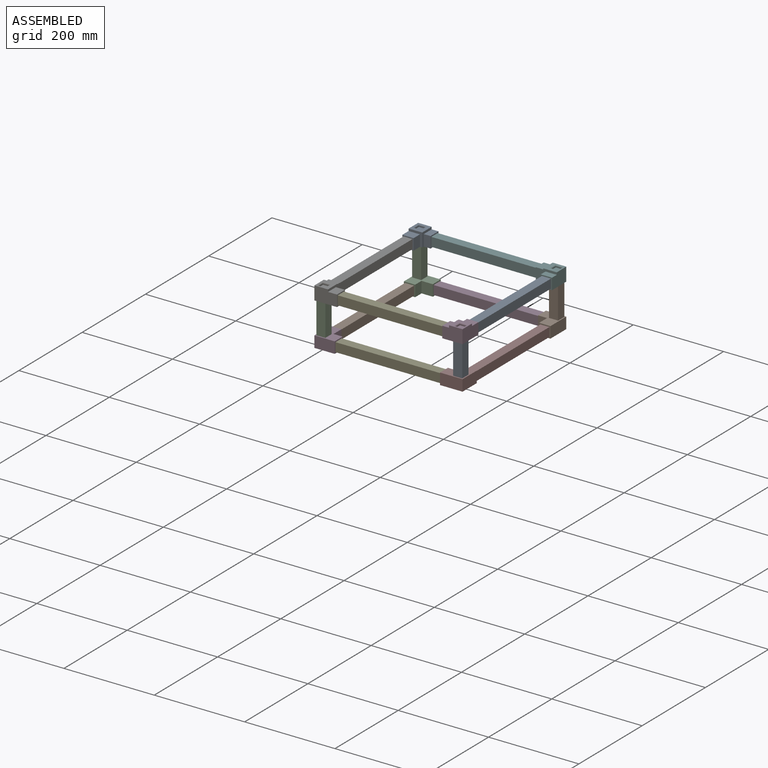
[diagram: assembled view]
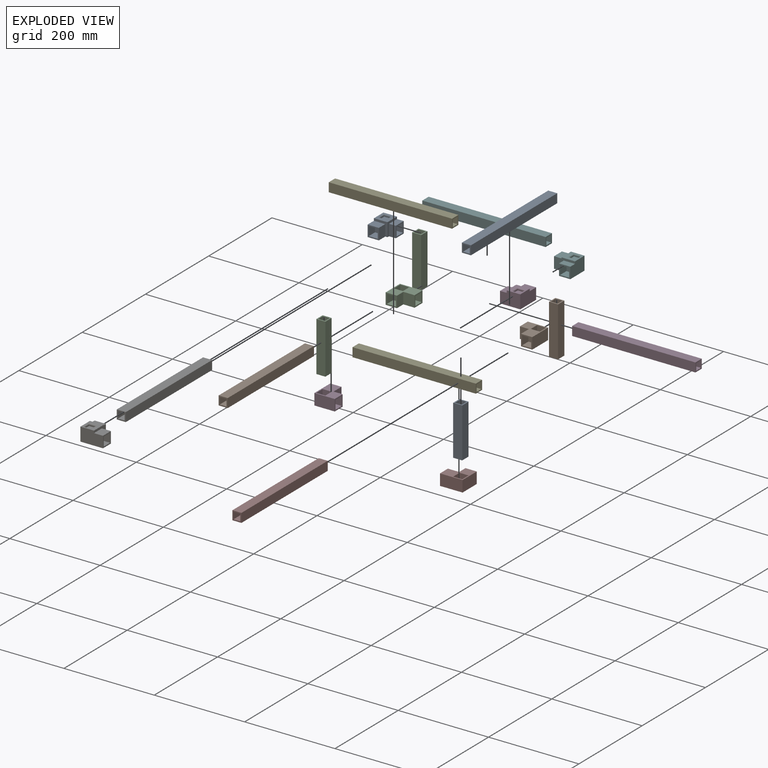
[diagram: exploded view]
GUIDED TOUR — MATED ASSEMBLY (Onshape document 24934e8f8b2bb171f6c803bb, AutoMate assembly 24934e8f8b2bb171f6c803bb_d98a2037839b162d8d30d801_a1f87b2b2d617943c96d1307_default)

This assembly has 20 components, labeled P0..P19 below (a component is one placed occurrence of a part; the same part can appear more than once), held together by 19 mates. A mate is a constraint between two components; its type names the relative motion it leaves free:
  FASTENED — locks the two components together rigidly (no relative motion).
Axis/direction vectors are unit vectors and 'through' points are millimeter coordinates, both in the assembly's world frame.

MATES
  1. FASTENED "Fastened 16": P12 <-> P11, direction (-1.000, 0.000, 0.000) through (65.37, 32.43, -6.54) mm
  2. FASTENED "Fastened 15": P15 <-> P16, direction (0.000, 0.000, 1.000) through (355.87, 32.43, -14.04) mm
  3. FASTENED "Fastened 17": P17 <-> P2, direction (0.000, 1.000, 0.000) through (52.87, 322.93, -6.54) mm
  4. FASTENED "Fastened 6": P5 <-> P0, direction (0.000, -1.000, 0.000) through (355.87, 322.93, 88.46) mm
  5. FASTENED "Fastened 7": P8 <-> P6, direction (0.000, -1.000, 0.000) through (52.87, 317.93, 88.46) mm
  6. FASTENED "Fastened 4": P19 <-> P4, direction (-1.000, 0.000, 0.000) through (343.37, 32.43, 88.46) mm
  7. FASTENED "Fastened 3": P4 <-> P14, direction (-1.000, 0.000, 0.000) through (70.37, 32.43, 88.46) mm
  8. FASTENED "Fastened 18": P7 <-> P9, direction (0.000, 1.000, 0.000) through (355.87, 317.93, -6.54) mm
  9. FASTENED "Fastened 19": P3 <-> P9, direction (1.000, 0.000, 0.000) through (343.37, 335.43, -6.54) mm
  10. FASTENED "Fastened 13": P2 <-> P10, direction (0.000, 0.000, 1.000) through (52.87, 335.43, -14.04) mm
  11. FASTENED "Fastened 12": P11 <-> P18, direction (0.000, 0.000, 1.000) through (52.87, 32.43, -14.04) mm
  12. FASTENED "Fastened 9": P1 <-> P5, direction (0.000, 0.000, 1.000) through (355.87, 335.43, 95.96) mm
  13. FASTENED "Fastened 5": P0 <-> P19, direction (0.000, -1.000, 0.000) through (355.87, 49.93, 88.46) mm
  14. FASTENED "Fastened 14": P9 <-> P1, direction (0.000, 0.000, 1.000) through (355.87, 335.43, -14.04) mm
  15. FASTENED "Fastened 1": P6 <-> P14, direction (0.000, -1.000, 0.000) through (52.87, 44.93, 88.46) mm
  16. FASTENED "Fastened 8": P13 <-> P8, direction (-1.000, 0.000, 0.000) through (65.37, 335.43, 88.46) mm
  17. FASTENED "Fastened 11": P10 <-> P8, direction (0.000, 0.000, 1.000) through (52.87, 335.43, 95.96) mm
  18. FASTENED "Fastened 2": P14 <-> P18, direction (0.000, 0.000, -1.000) through (52.87, 32.43, 95.96) mm
  19. FASTENED "Fastened 10": P16 <-> P19, direction (0.000, 0.000, 1.000) through (355.87, 32.43, 95.96) mm

ASSEMBLY ORDER
  1. P10 — the base component [order heuristic]
  2. P2 — core [order heuristic]
  3. P5 [order verified]
  4. P18 — core [order heuristic]
  5. P11 — core [order heuristic]
  6. P12 — core [order heuristic]
  7. P16 — core [order heuristic]
  8. P15 — core [order heuristic]
  9. P1 — core [order heuristic]
  10. P8 [order verified]
  11. P3 — core [order heuristic]
  12. P9 — core [order heuristic]
  13. P4 [order verified]
  14. P17 — core [order heuristic]
  15. P0 [order verified]
  16. P6 [order verified]
  17. P7 — core [order heuristic]
  18. P13 [order verified]
  19. P19 [order verified]
  20. P14 [order verified]
(P14 verified with a relaxed clearance tolerance: the source model stores slight part interference there.)
Order-tag legend:
  [order verified] — this step's position reverses a verified removal order: the component was checked to insert without passing through the ones already placed.
  [order heuristic] — the first 12 components form the assembly's core: parts whose collision-free extraction could not be verified, listed in mate-graph order.

Of the 20 components, 4 carry the full construction recipe — the FeatureScript program that regenerates the part's solid from scratch; the rest are supplied as boundary geometry only.
Because this assembly has more than 12 components, the tour below covers the 12 most significant ones individually (every recipe-attached component first, then the largest by part volume), in assembly order; the remaining 8 are summarized together in a grouped section at the end.
Each toured component is shown spotlighted twice — in the assembled view, then in the exploded view, where a leader line traces a displaced component back to its assembled socket (saturated green if recipe-attached, orange if geometry-only; every other component desaturated gray) — followed by its recipe or geometry summary and the mates that hold it.
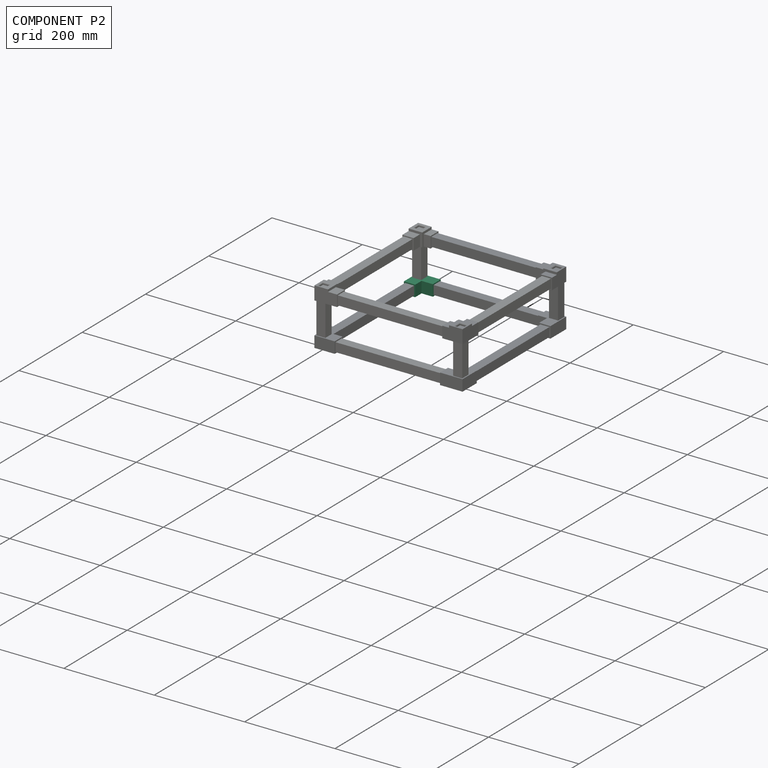
[diagram: component P2 — assembled]
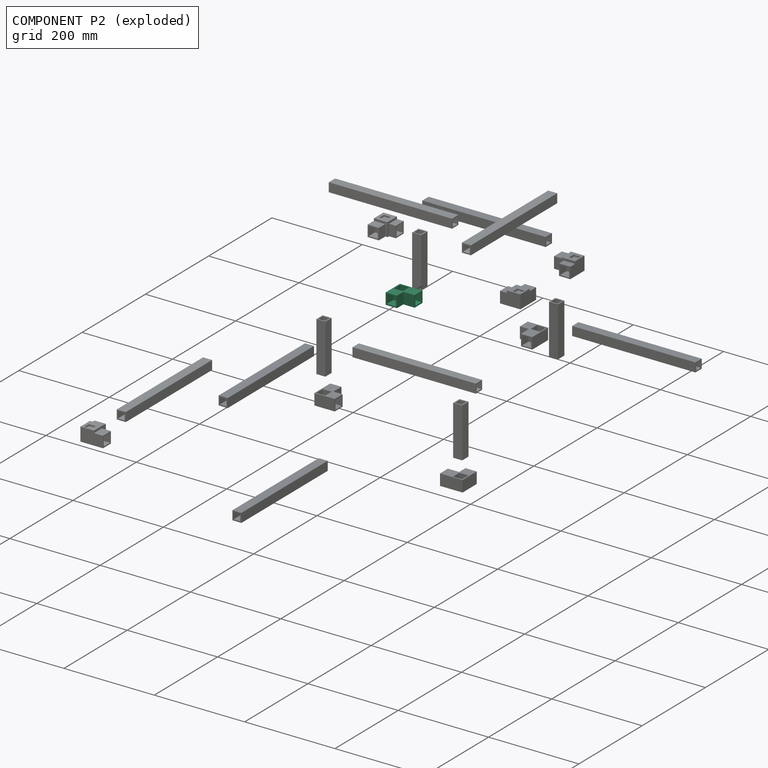
[diagram: component P2 — exploded]
COMPONENT P2 — recipe-attached (CADFS 00231972, mesh-verified: the recipe's output STEP matches this component's geometry to below the mesh-comparison resolution (tessellation chordal tolerance ~0.108 mm)).
Held by: FASTENED mate "Fastened 17" to P17; FASTENED mate "Fastened 13" to P10.
Construction recipe (FeatureScript — the CAD program that rebuilds this solid; sketch coordinates are in the units given by the * unit suffixes, e.g. mm):

FeatureScript 1511;
import(path : "onshape/std/geometry.fs", version : "1511.0");
import(path : "onshape/std/common.fs", version : "1511.0");
const mm = millimeter;
const VERTEX = EntityType.VERTEX;
const EDGE = EntityType.EDGE;
const FACE = EntityType.FACE;
const BODY = EntityType.BODY;
function v(x, y){return vector(x, y);}
function OD(order){return orderDisambiguation(order);}
function OSD(set){return originalSetDisambiguation(set);}
function TD(topology){return topologyDisambiguation(topology);}
function TDD(query){return trueDependencyDisambiguation(query);}
function sQuery(a, b, c) {return sketchEntityQuery(a, b, c);}

annotation { "Feature Type Name" : "Feature", "Feature Type Description" : "" }
export const myFeature = defineFeature(function(context is Context, id is Id, definition is map)
    precondition{}
    {
        {
            var Q0;
            Q0=qCreatedBy(makeId("Top.planeOp"),FACE);
            var sketch = newSketch(context, id + "F0", { "sketchPlane" : qUnion([Q0])});
            skLineSegment(sketch, "E0.top", {"start": v(0, 30) * mm, "end": v(-25, 30) * mm});
            skLineSegment(sketch, "E0.left", {"start": v(0, 5) * mm, "end": v(0, 30) * mm});
            skLineSegment(sketch, "E0.right", {"start": v(-25, 5) * mm, "end": v(-25, 30) * mm});
            skLineSegment(sketch, "E1.top", {"start": v(0, 10) * mm, "end": v(-25, 10) * mm});
            skLineSegment(sketch, "E1.left", {"start": v(0, 5) * mm, "end": v(0, 10) * mm});
            skLineSegment(sketch, "E1.right", {"start": v(-25, 5) * mm, "end": v(-25, 10) * mm});
            skLineSegment(sketch, "E2.bottom", {"start": v(0, 30) * mm, "end": v(5, 30) * mm});
            skLineSegment(sketch, "E2.left", {"start": v(0, 30) * mm, "end": v(0, 5) * mm});
            skLineSegment(sketch, "E2.right", {"start": v(5, 30) * mm, "end": v(5, 5) * mm});
            skLineSegment(sketch, "E3.bottom", {"start": v(5, 30) * mm, "end": v(25, 30) * mm});
            skLineSegment(sketch, "E3.top", {"start": v(5, 5) * mm, "end": v(25, 5) * mm});
            skLineSegment(sketch, "E3.right", {"start": v(25, 30) * mm, "end": v(25, 5) * mm});
            skLineSegment(sketch, "E4", {"start": v(5, 5) * mm, "end": v(-25, 5) * mm});
            skSolve(sketch);
        }
        {
            var Q0;
            Q0=qSketchRegion(id+"F0",true);
            extrude(context, id + "F1", {"entities" : qUnion([Q0]), "depth" : 25 * mm});
        }
        {
            var Q0;
            Q0=makeQuery(id+"F1.opExtrude","SWEPT_FACE",FACE,{"disambiguationData":[OSD([sQuery(id+"F0.wireOp",EDGE,"E0.top"),sQuery(id+"F0.wireOp",EDGE,"E2.bottom"),sQuery(id+"F0.wireOp",EDGE,"E3.bottom")])]});
            var sketch = newSketch(context, id + "F2", { "sketchPlane" : qUnion([Q0])});
            skLineSegment(sketch, "E5.bottom", {"start": v(25, 25) * mm, "end": v(0, 25) * mm});
            skLineSegment(sketch, "E5.top", {"start": v(25, 0) * mm, "end": v(0, 0) * mm});
            skLineSegment(sketch, "E5.left", {"start": v(25, 25) * mm, "end": v(25, 0) * mm});
            skLineSegment(sketch, "E5.right", {"start": v(0, 25) * mm, "end": v(0, 0) * mm});
            skLineSegment(sketch, "E6.bottom", {"start": v(2.5, 2.5) * mm, "end": v(22.5, 2.5) * mm});
            skLineSegment(sketch, "E6.top", {"start": v(2.5, 22.5) * mm, "end": v(22.5, 22.5) * mm});
            skLineSegment(sketch, "E6.left", {"start": v(2.5, 2.5) * mm, "end": v(2.5, 22.5) * mm});
            skLineSegment(sketch, "E6.right", {"start": v(22.5, 2.5) * mm, "end": v(22.5, 22.5) * mm});
            skPoint(sketch, "E6.middle", {"position": v(12.5, 12.5) * mm});
            skPoint(sketch, "E6.middle.positionSnap0", {"position": v(25, 12.5) * mm});
            skPoint(sketch, "E6.middle.positionSnap1", {"position": v(12.5, 25) * mm});
            skPoint(sketch, "E6.centerSnap0", {"position": v(25, 12.5) * mm});
            skPoint(sketch, "E6.centerSnap1", {"position": v(12.5, 25) * mm});
            skSolve(sketch);
        }
        {
            var Q0;
            Q0=makeQuery(id+"F2.imprint","IMPRINT",FACE,{"disambiguationData":[TD([[makeQuery(id+"F2.imprint","IMPRINT",EDGE,{"derivedFrom":sQuery(id+"F2.wireOp",EDGE,"E6.bottom")}),1.0]])]});
            extrude(context, id + "F3", {"entities" : qUnion([Q0]), "operationType" : NewBodyOperationType.REMOVE, "oppositeDirection" : true, "depth" : 20 * mm});
        }
        {
            var Q0;
            Q0=makeQuery(id+"F1.opExtrude","SWEPT_FACE",FACE,{"disambiguationData":[OSD([sQuery(id+"F0.wireOp",EDGE,"E3.right")])]});
            var sketch = newSketch(context, id + "F4", { "sketchPlane" : qUnion([Q0])});
            skLineSegment(sketch, "E7.bottom", {"start": v(5, 0) * mm, "end": v(30, 0) * mm});
            skLineSegment(sketch, "E7.top", {"start": v(5, 25) * mm, "end": v(30, 25) * mm});
            skLineSegment(sketch, "E7.left", {"start": v(5, 0) * mm, "end": v(5, 25) * mm});
            skLineSegment(sketch, "E7.right", {"start": v(30, 0) * mm, "end": v(30, 25) * mm});
            skLineSegment(sketch, "E8.bottom", {"start": v(27.5, 2.5) * mm, "end": v(7.5, 2.5) * mm});
            skLineSegment(sketch, "E8.top", {"start": v(27.5, 22.5) * mm, "end": v(7.5, 22.5) * mm});
            skLineSegment(sketch, "E8.left", {"start": v(27.5, 2.5) * mm, "end": v(27.5, 22.5) * mm});
            skLineSegment(sketch, "E8.right", {"start": v(7.5, 2.5) * mm, "end": v(7.5, 22.5) * mm});
            skPoint(sketch, "E8.middle", {"position": v(17.5, 12.5) * mm});
            skPoint(sketch, "E8.middle.positionSnap0", {"position": v(17.5, 25) * mm});
            skPoint(sketch, "E8.middle.positionSnap1", {"position": v(5, 12.5) * mm});
            skPoint(sketch, "E8.centerSnap0", {"position": v(17.5, 25) * mm});
            skPoint(sketch, "E8.centerSnap1", {"position": v(5, 12.5) * mm});
            skSolve(sketch);
        }
        {
            var Q0;
            Q0=makeQuery(id+"F4.imprint","IMPRINT",FACE,{"disambiguationData":[TD([[makeQuery(id+"F4.imprint","IMPRINT",EDGE,{"derivedFrom":sQuery(id+"F4.wireOp",EDGE,"E8.bottom")}),-1.0]])]});
            extrude(context, id + "F5", {"entities" : qUnion([Q0]), "operationType" : NewBodyOperationType.REMOVE, "oppositeDirection" : true, "depth" : 20 * mm});
        }
        {
            var Q0;
            Q0=makeQuery(id+"F1.opExtrude","CAP_FACE",FACE,{"disambiguationData":[OSD([sQuery(id+"F0.wireOp",EDGE,"E0.top"),sQuery(id+"F0.wireOp",EDGE,"E0.right"),sQuery(id+"F0.wireOp",EDGE,"E1.bottom"),sQuery(id+"F0.wireOp",EDGE,"E1.right"),sQuery(id+"F0.wireOp",EDGE,"E2.bottom"),sQuery(id+"F0.wireOp",EDGE,"E2.top"),sQuery(id+"F0.wireOp",EDGE,"E2.right"),sQuery(id+"F0.wireOp",EDGE,"E3.bottom"),sQuery(id+"F0.wireOp",EDGE,"E3.top"),sQuery(id+"F0.wireOp",EDGE,"E3.right")])],"isStart":false});
            var sketch = newSketch(context, id + "F6", { "sketchPlane" : qUnion([Q0])});
            skLineSegment(sketch, "E9.bottom", {"start": v(-25, 30) * mm, "end": v(0, 30) * mm});
            skLineSegment(sketch, "E9.top", {"start": v(-25, 5) * mm, "end": v(0, 5) * mm});
            skLineSegment(sketch, "E9.left", {"start": v(-25, 30) * mm, "end": v(-25, 5) * mm});
            skLineSegment(sketch, "E9.right", {"start": v(0, 30) * mm, "end": v(0, 5) * mm});
            skLineSegment(sketch, "E10.bottom", {"start": v(-2.5, 7.5) * mm, "end": v(-22.5, 7.5) * mm});
            skLineSegment(sketch, "E10.top", {"start": v(-2.5, 27.5) * mm, "end": v(-22.5, 27.5) * mm});
            skLineSegment(sketch, "E10.left", {"start": v(-2.5, 7.5) * mm, "end": v(-2.5, 27.5) * mm});
            skLineSegment(sketch, "E10.right", {"start": v(-22.5, 7.5) * mm, "end": v(-22.5, 27.5) * mm});
            skPoint(sketch, "E10.middle", {"position": v(-12.5, 17.5) * mm});
            skPoint(sketch, "E10.middle.positionSnap0", {"position": v(-25, 17.5) * mm});
            skPoint(sketch, "E10.middle.positionSnap1", {"position": v(-12.5, 30) * mm});
            skPoint(sketch, "E10.centerSnap0", {"position": v(-25, 17.5) * mm});
            skPoint(sketch, "E10.centerSnap1", {"position": v(-12.5, 30) * mm});
            skSolve(sketch);
        }
        {
            var Q0;
            Q0=qSketchRegion(id+"F6",true);
            extrude(context, id + "F7", {"entities" : qUnion([Q0]), "operationType" : NewBodyOperationType.ADD, "depth" : 20 * mm});
        }
    });
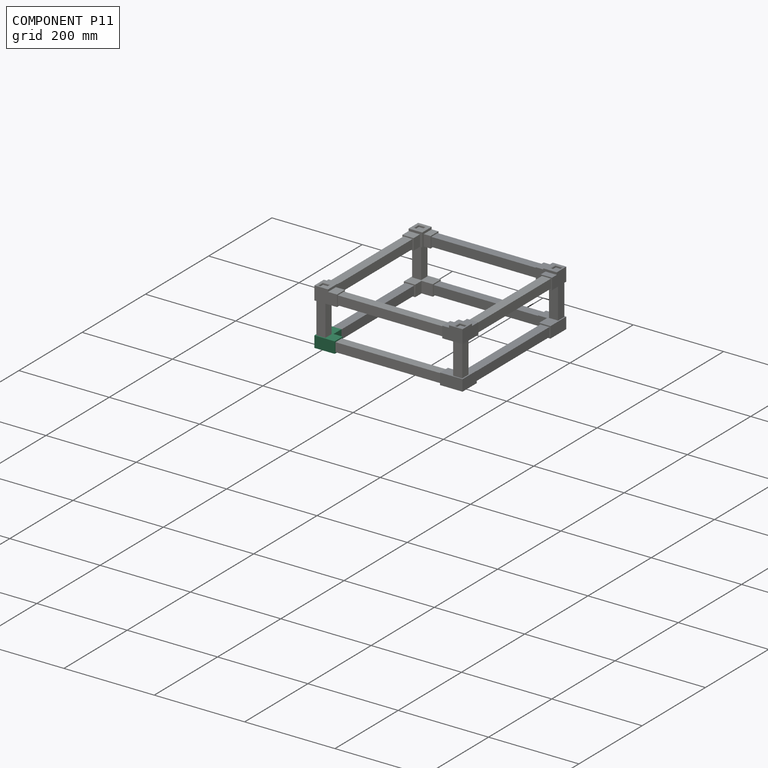
[diagram: component P11 — assembled]
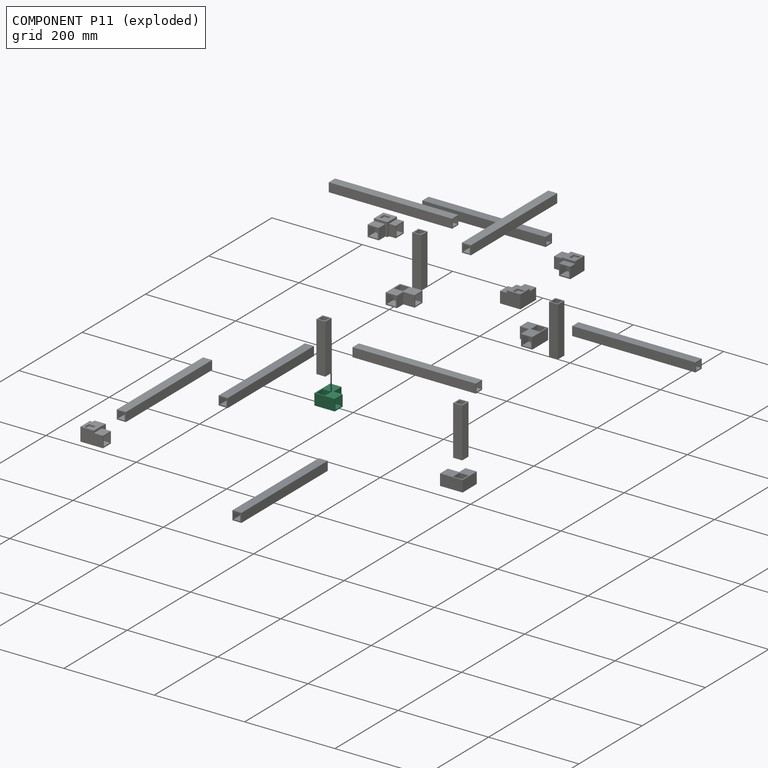
[diagram: component P11 — exploded]
COMPONENT P11 — same part as P2 (CADFS 00231972); its construction recipe is shown at P2.
Held by: FASTENED mate "Fastened 16" to P12; FASTENED mate "Fastened 12" to P18.
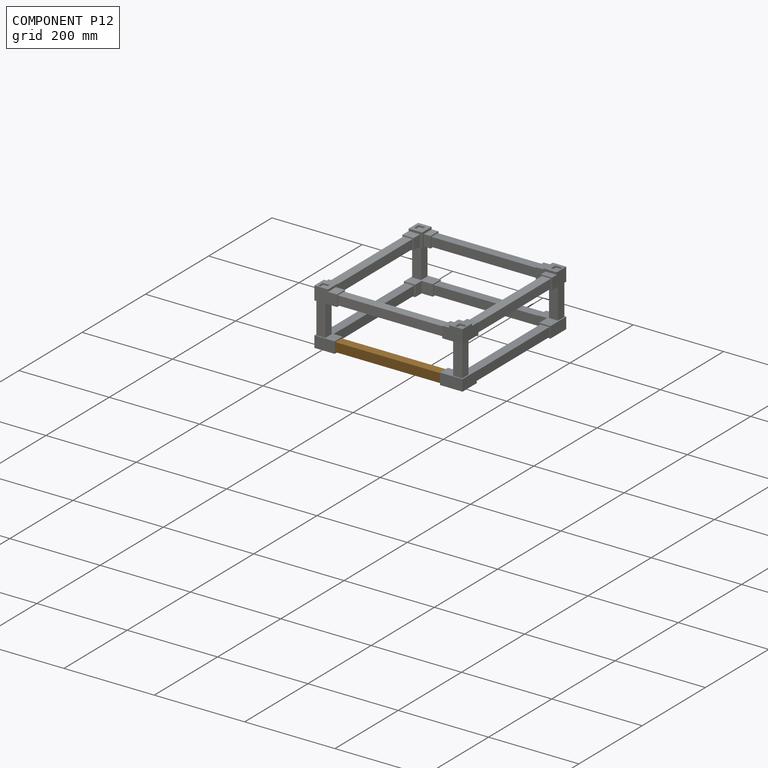
[diagram: component P12 — assembled]
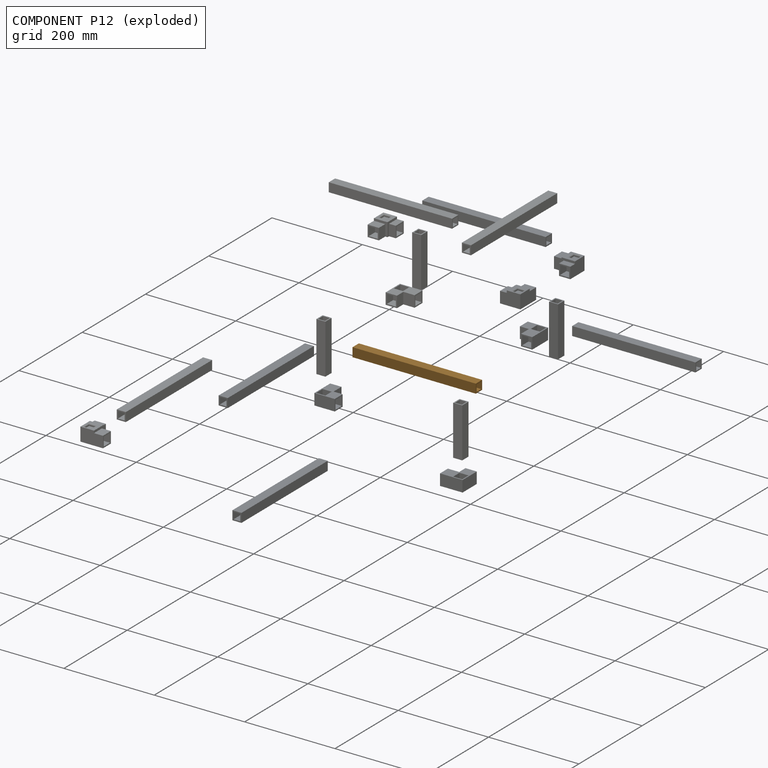
[diagram: component P12 — exploded]
COMPONENT P12 — geometry summary (no construction recipe available for this part):
  bounding box: 273.0 x 20.0 x 20.0 mm
  B-rep topology: 1 solid, 10 faces, 48 edges
  volume: 47775 mm^3 (44% of its bounding box)
  symmetry: 2-fold rotationally symmetric about the x axis; 4-fold rotationally symmetric about the y axis; 2-fold rotationally symmetric about the z axis; mirror-symmetric across its x mid-plane, y mid-plane, z mid-plane
Held by: FASTENED mate "Fastened 16" to P11.
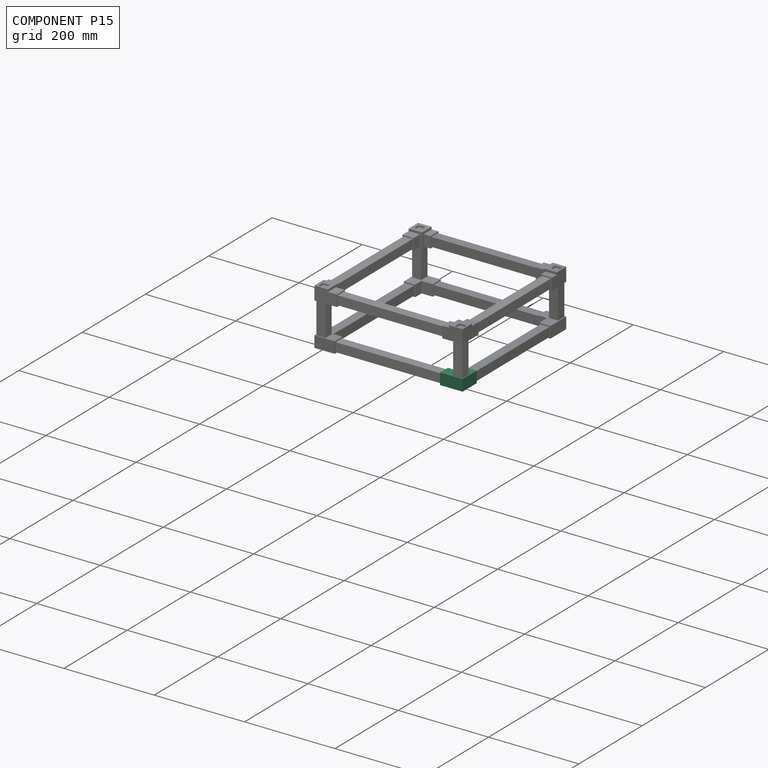
[diagram: component P15 — assembled]
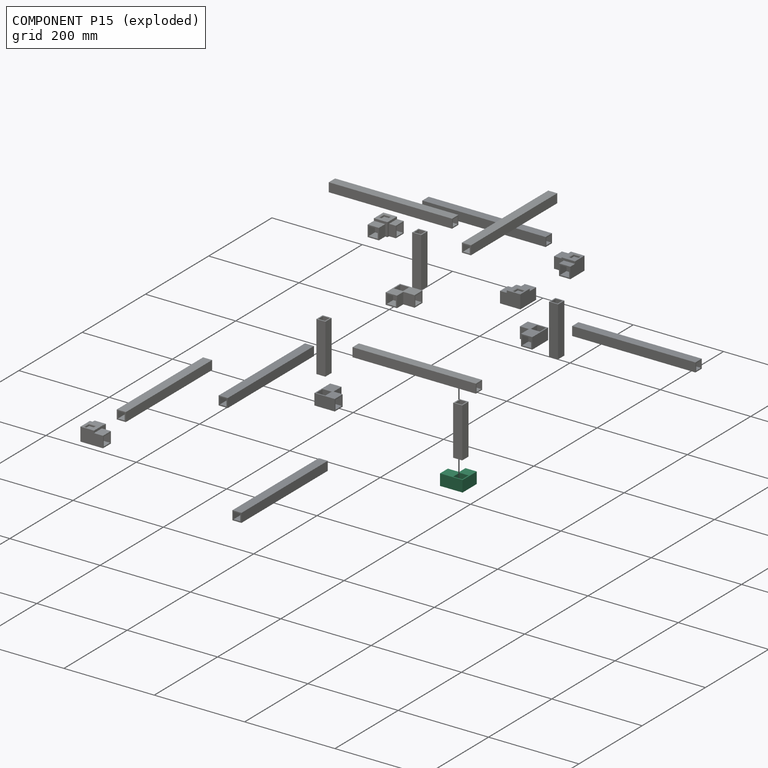
[diagram: component P15 — exploded]
COMPONENT P15 — same part as P2 (CADFS 00231972); its construction recipe is shown at P2.
Held by: FASTENED mate "Fastened 15" to P16.
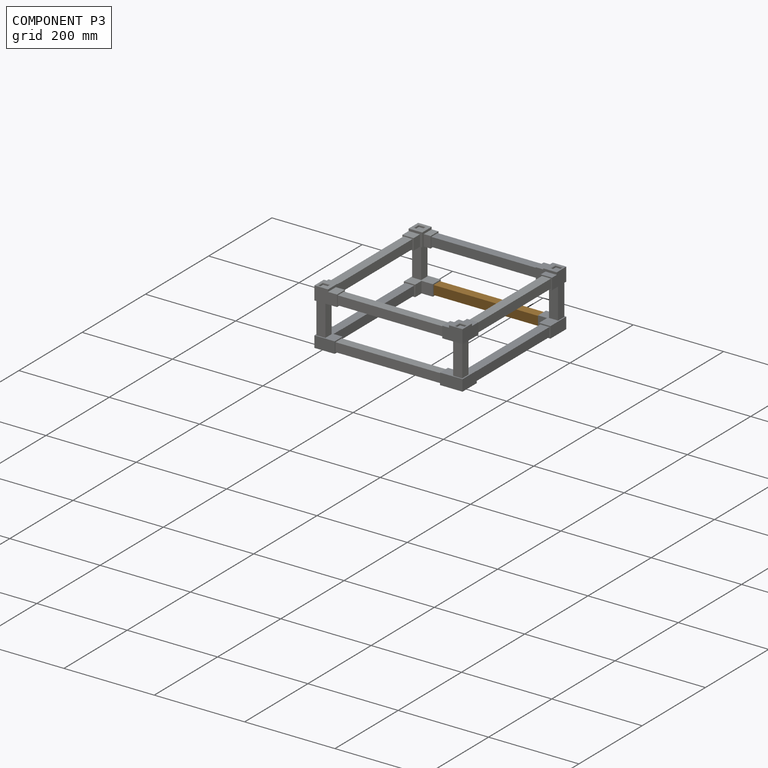
[diagram: component P3 — assembled]
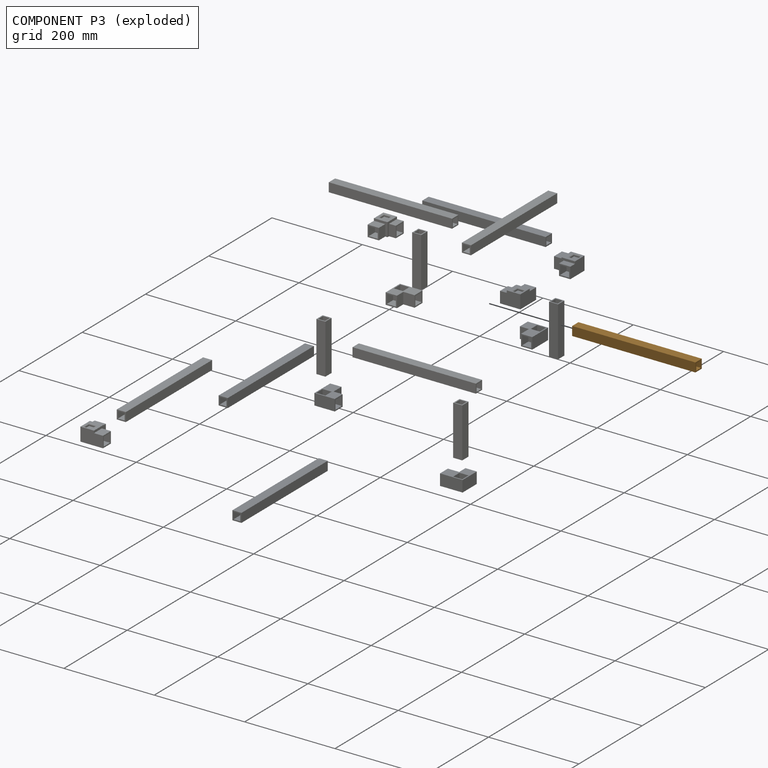
[diagram: component P3 — exploded]
COMPONENT P3 — geometry summary (no construction recipe available for this part):
  bounding box: 273.0 x 20.0 x 20.0 mm
  B-rep topology: 1 solid, 10 faces, 48 edges
  volume: 47775 mm^3 (44% of its bounding box)
  symmetry: 2-fold rotationally symmetric about the x axis; 4-fold rotationally symmetric about the y axis; 2-fold rotationally symmetric about the z axis; mirror-symmetric across its x mid-plane, y mid-plane, z mid-plane
Held by: FASTENED mate "Fastened 19" to P9.
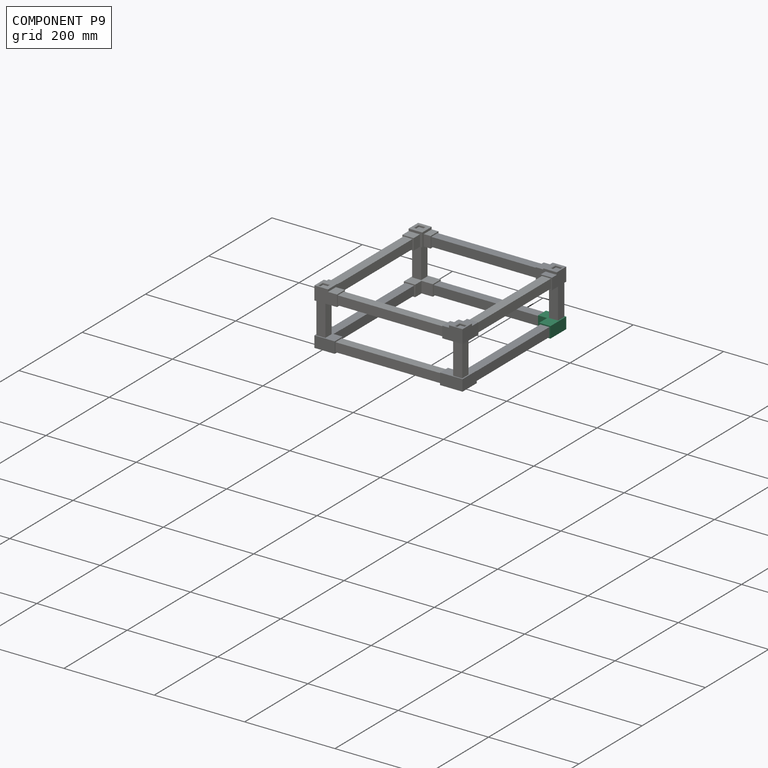
[diagram: component P9 — assembled]
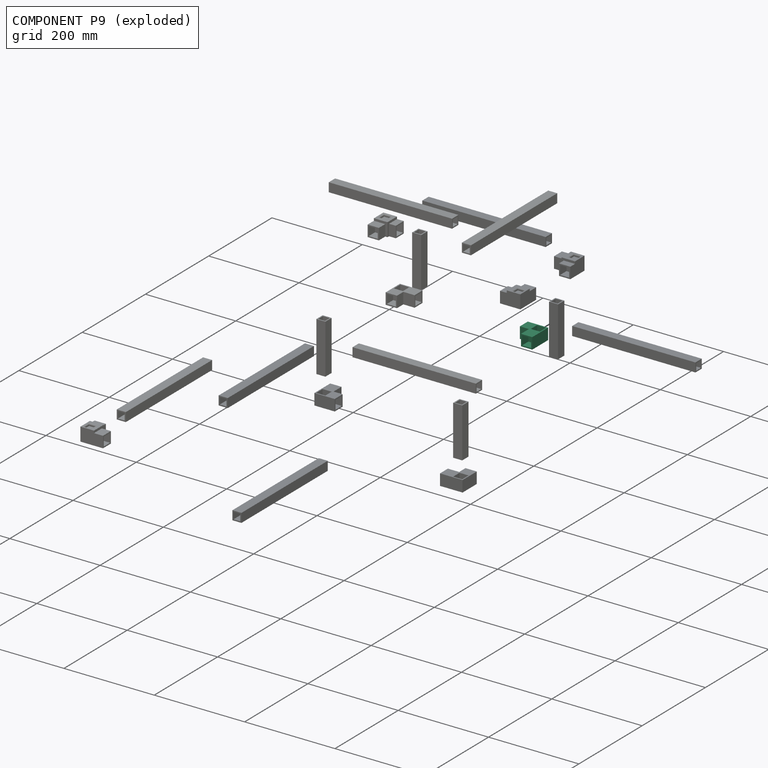
[diagram: component P9 — exploded]
COMPONENT P9 — same part as P2 (CADFS 00231972); its construction recipe is shown at P2.
Held by: FASTENED mate "Fastened 18" to P7; FASTENED mate "Fastened 19" to P3; FASTENED mate "Fastened 14" to P1.
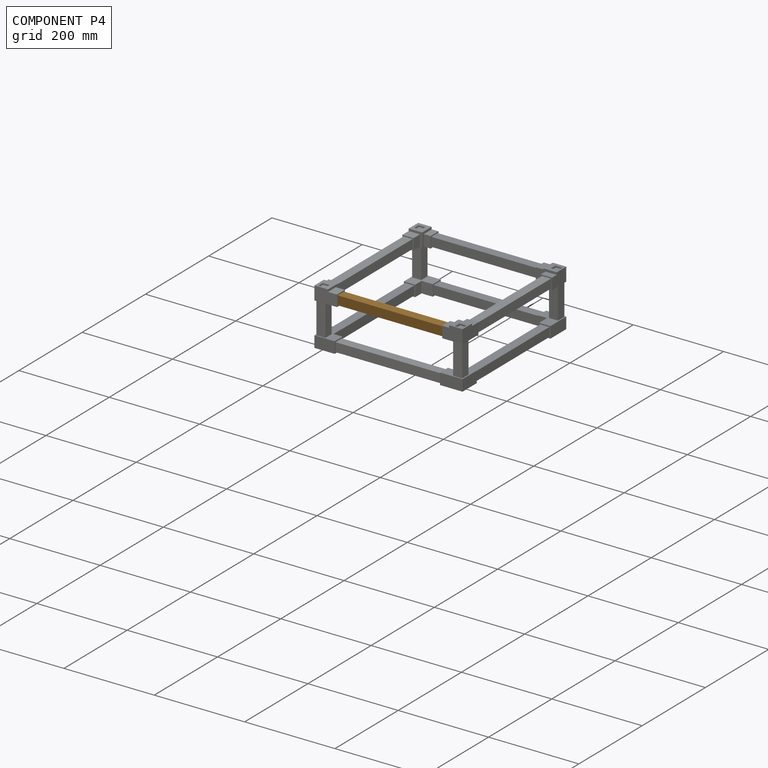
[diagram: component P4 — assembled]
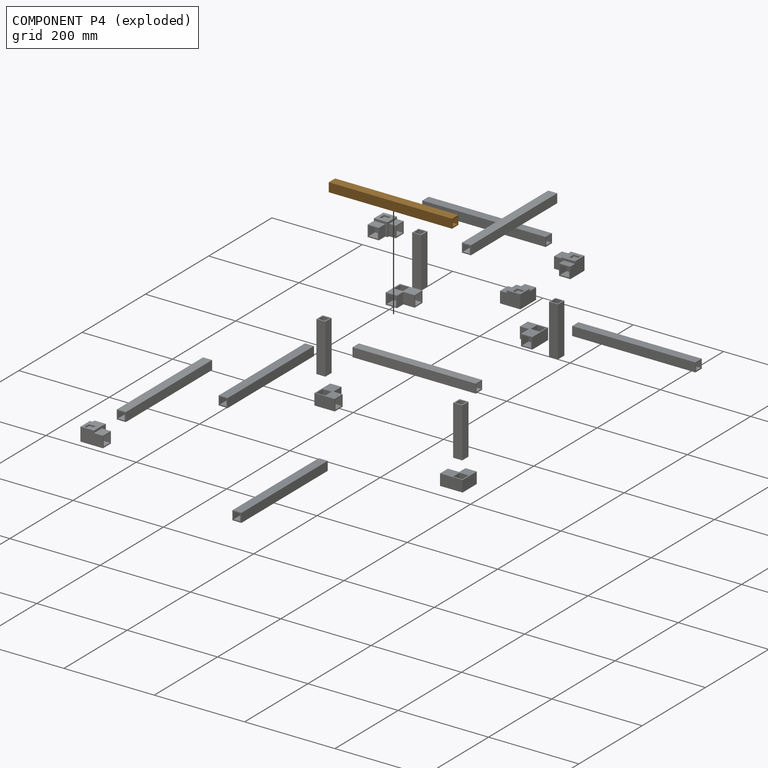
[diagram: component P4 — exploded]
COMPONENT P4 — geometry summary (no construction recipe available for this part):
  bounding box: 273.0 x 20.0 x 20.0 mm
  B-rep topology: 1 solid, 10 faces, 48 edges
  volume: 47775 mm^3 (44% of its bounding box)
  symmetry: 2-fold rotationally symmetric about the x axis; 4-fold rotationally symmetric about the y axis; 2-fold rotationally symmetric about the z axis; mirror-symmetric across its x mid-plane, y mid-plane, z mid-plane
Held by: FASTENED mate "Fastened 4" to P19; FASTENED mate "Fastened 3" to P14.
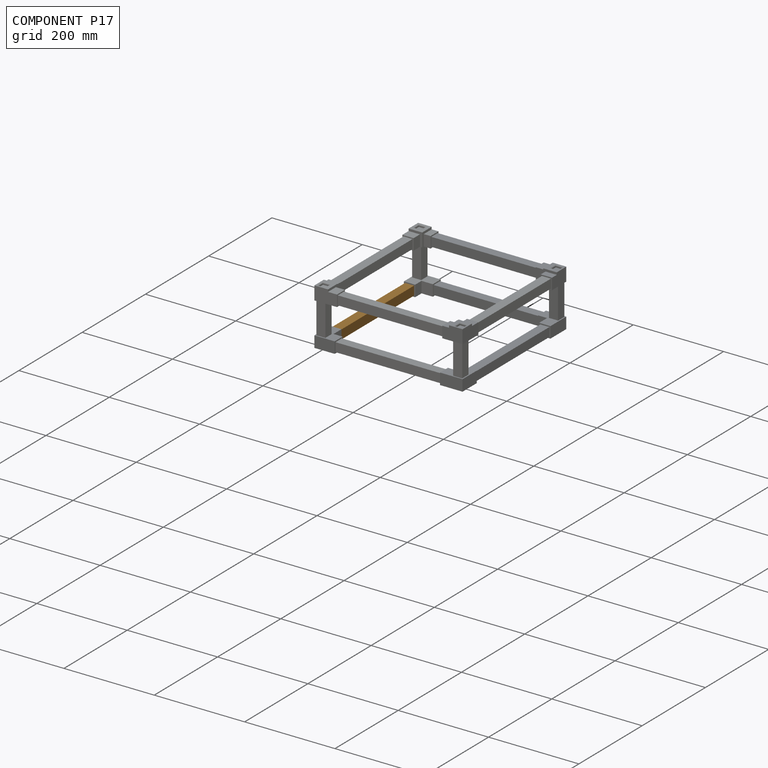
[diagram: component P17 — assembled]
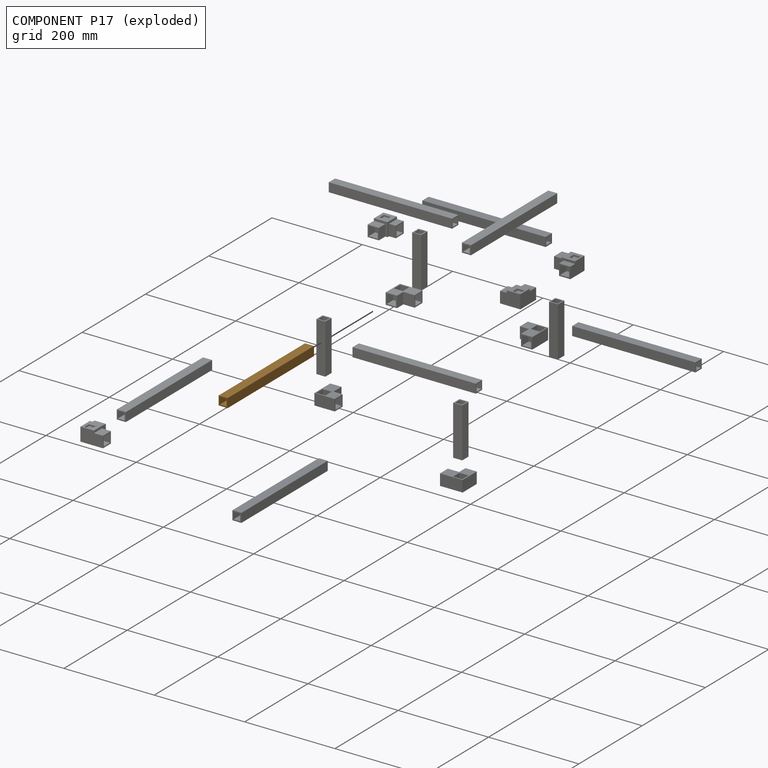
[diagram: component P17 — exploded]
COMPONENT P17 — geometry summary (no construction recipe available for this part):
  bounding box: 273.0 x 20.0 x 20.0 mm
  B-rep topology: 1 solid, 10 faces, 48 edges
  volume: 47775 mm^3 (44% of its bounding box)
  symmetry: 2-fold rotationally symmetric about the x axis; 4-fold rotationally symmetric about the y axis; 2-fold rotationally symmetric about the z axis; mirror-symmetric across its x mid-plane, y mid-plane, z mid-plane
Held by: FASTENED mate "Fastened 17" to P2.
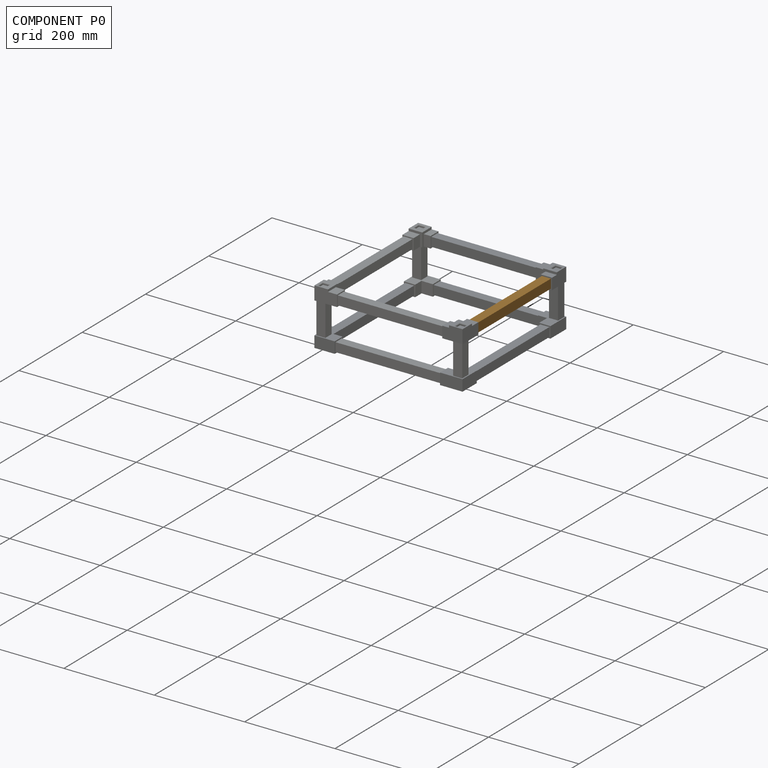
[diagram: component P0 — assembled]
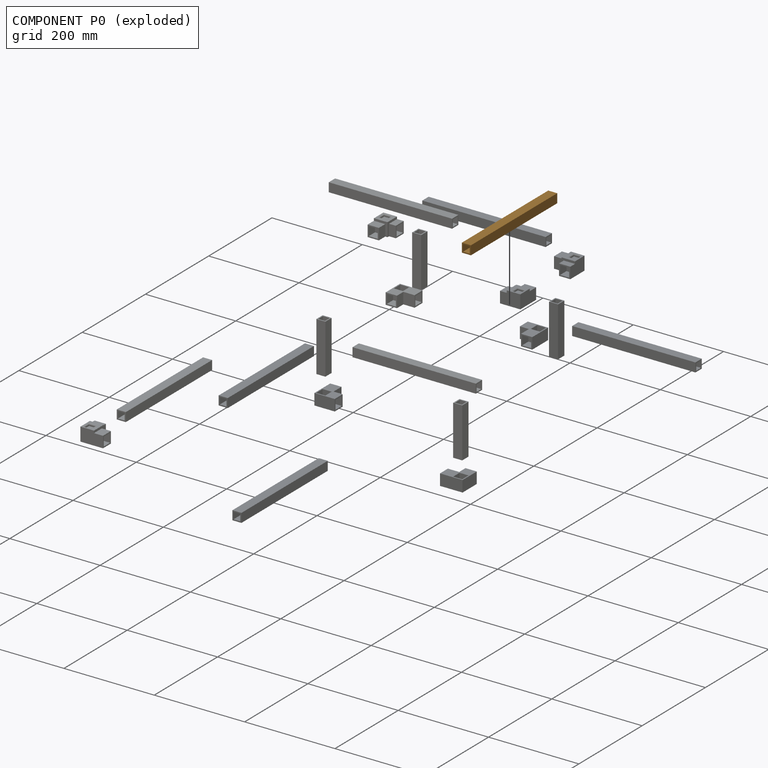
[diagram: component P0 — exploded]
COMPONENT P0 — geometry summary (no construction recipe available for this part):
  bounding box: 273.0 x 20.0 x 20.0 mm
  B-rep topology: 1 solid, 10 faces, 48 edges
  volume: 47775 mm^3 (44% of its bounding box)
  symmetry: 2-fold rotationally symmetric about the x axis; 4-fold rotationally symmetric about the y axis; 2-fold rotationally symmetric about the z axis; mirror-symmetric across its x mid-plane, y mid-plane, z mid-plane
Held by: FASTENED mate "Fastened 6" to P5; FASTENED mate "Fastened 5" to P19.
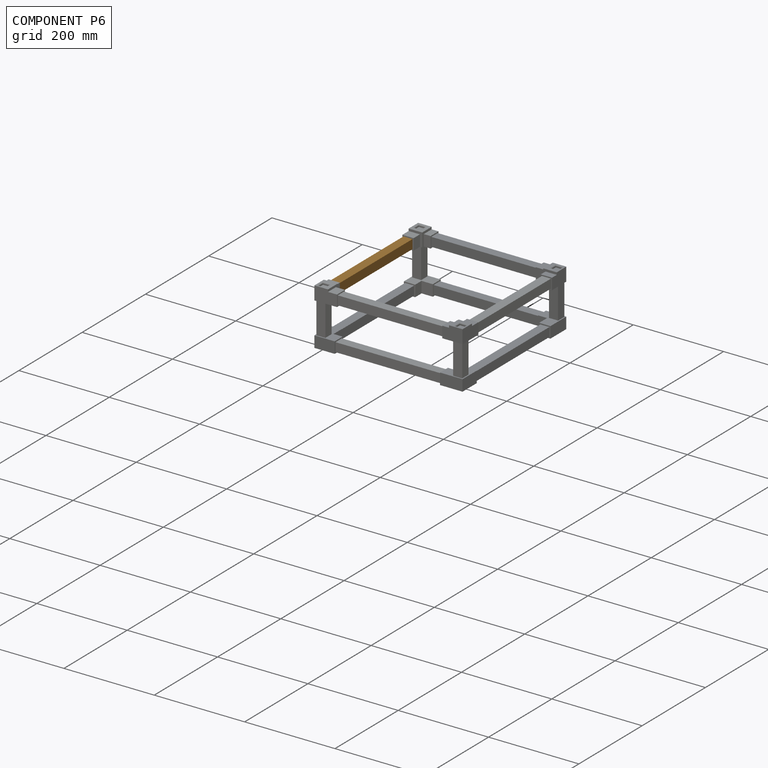
[diagram: component P6 — assembled]
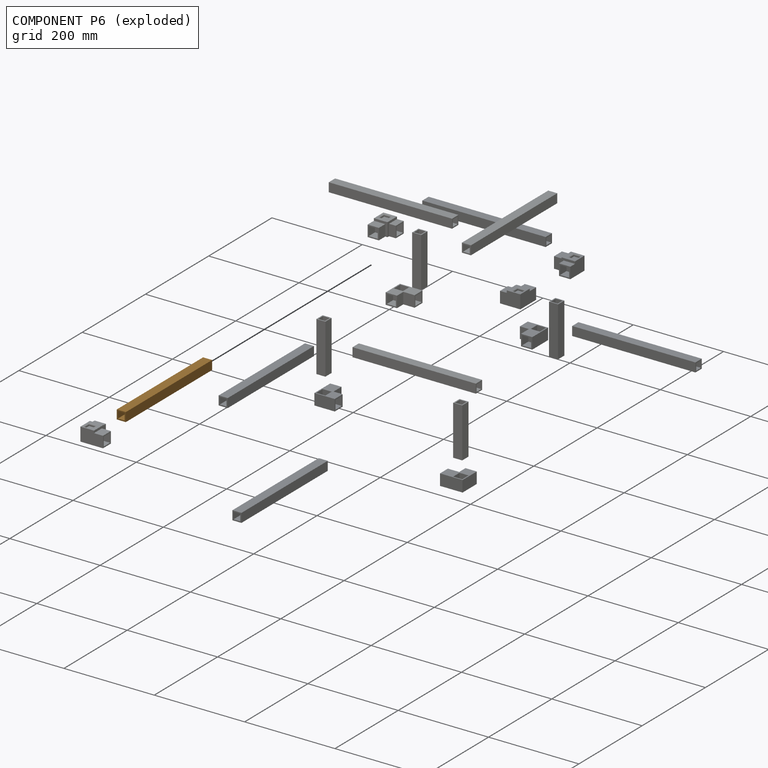
[diagram: component P6 — exploded]
COMPONENT P6 — geometry summary (no construction recipe available for this part):
  bounding box: 273.0 x 20.0 x 20.0 mm
  B-rep topology: 1 solid, 10 faces, 48 edges
  volume: 47775 mm^3 (44% of its bounding box)
  symmetry: 2-fold rotationally symmetric about the x axis; 4-fold rotationally symmetric about the y axis; 2-fold rotationally symmetric about the z axis; mirror-symmetric across its x mid-plane, y mid-plane, z mid-plane
Held by: FASTENED mate "Fastened 7" to P8; FASTENED mate "Fastened 1" to P14.
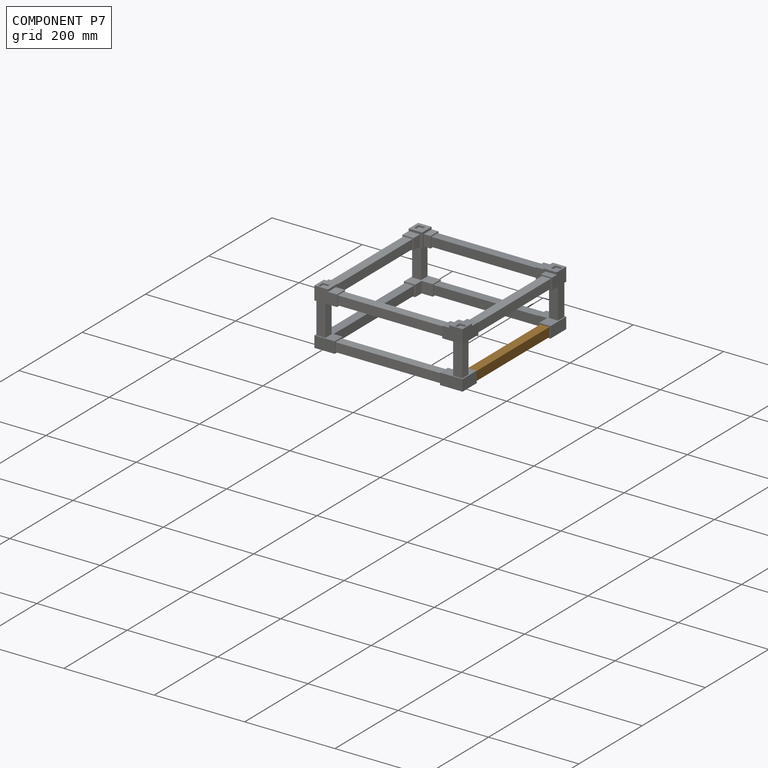
[diagram: component P7 — assembled]
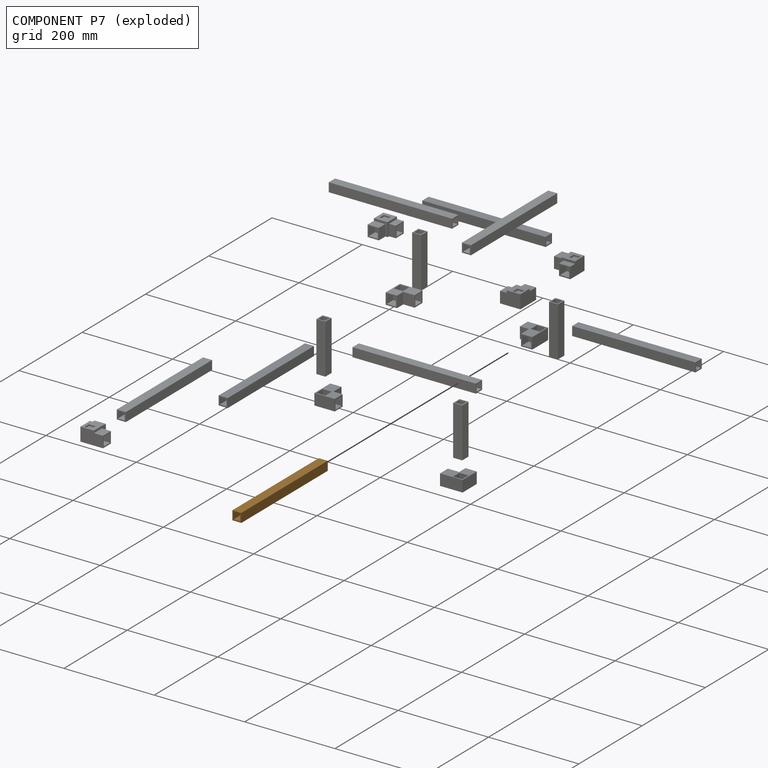
[diagram: component P7 — exploded]
COMPONENT P7 — geometry summary (no construction recipe available for this part):
  bounding box: 273.0 x 20.0 x 20.0 mm
  B-rep topology: 1 solid, 10 faces, 48 edges
  volume: 47775 mm^3 (44% of its bounding box)
  symmetry: 2-fold rotationally symmetric about the x axis; 4-fold rotationally symmetric about the y axis; 2-fold rotationally symmetric about the z axis; mirror-symmetric across its x mid-plane, y mid-plane, z mid-plane
Held by: FASTENED mate "Fastened 18" to P9.
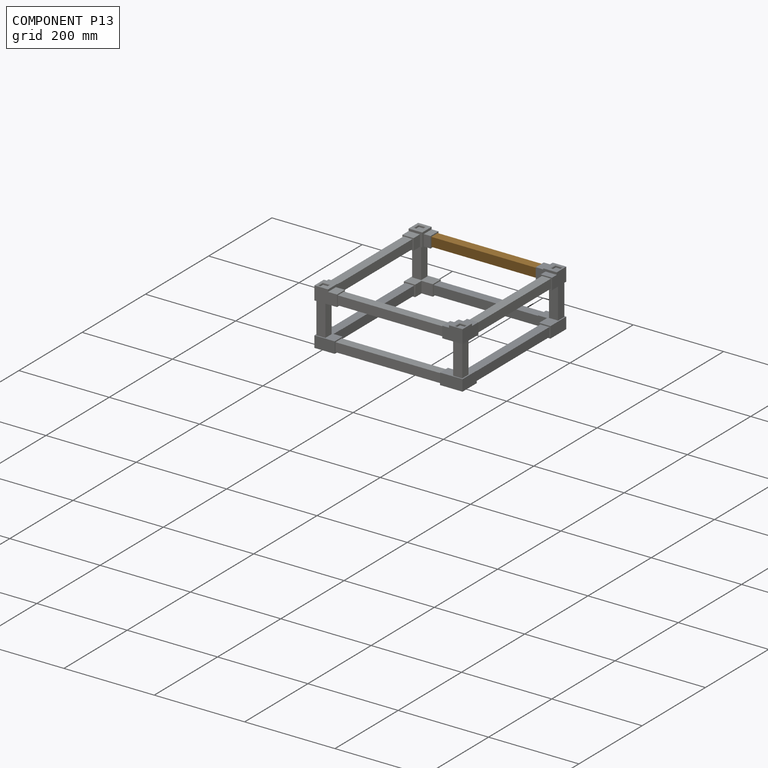
[diagram: component P13 — assembled]
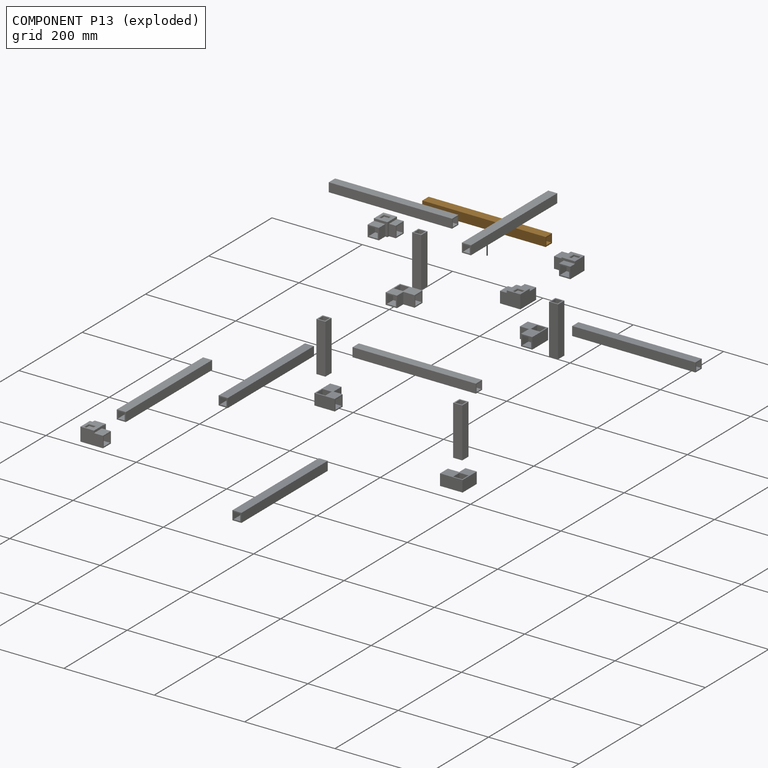
[diagram: component P13 — exploded]
COMPONENT P13 — geometry summary (no construction recipe available for this part):
  bounding box: 273.0 x 20.0 x 20.0 mm
  B-rep topology: 1 solid, 10 faces, 48 edges
  volume: 47775 mm^3 (44% of its bounding box)
  symmetry: 2-fold rotationally symmetric about the x axis; 4-fold rotationally symmetric about the y axis; 2-fold rotationally symmetric about the z axis; mirror-symmetric across its x mid-plane, y mid-plane, z mid-plane
Held by: FASTENED mate "Fastened 8" to P8.
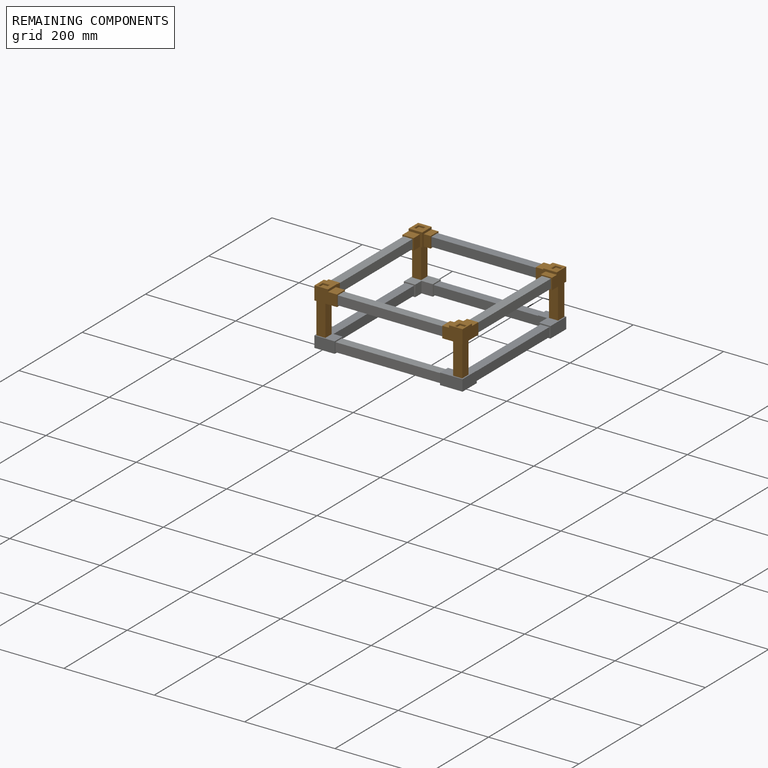
[diagram: remaining components — assembled]
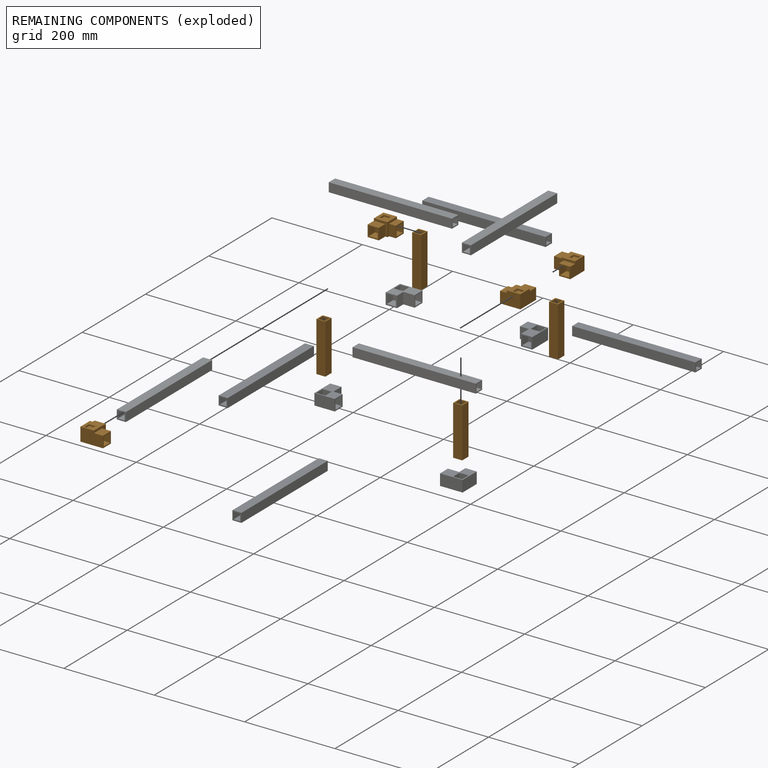
[diagram: remaining components — exploded]
REMAINING COMPONENTS (grouped) — the 8 components below fall outside the per-component tour by the significance rule stated above; both spotlight views highlight the whole group.
  P10: bounding box 110.0 x 20.0 x 20.0 mm, volume 19250 mm^3. Held by: FASTENED mate "Fastened 13" to P2; FASTENED mate "Fastened 11" to P8.
  P5: bounding box 50.0 x 45.0 x 30.0 mm, volume 23664 mm^3. Held by: FASTENED mate "Fastened 6" to P0; FASTENED mate "Fastened 9" to P1.
  P18: bounding box 110.0 x 20.0 x 20.0 mm, volume 19250 mm^3. Held by: FASTENED mate "Fastened 12" to P11; FASTENED mate "Fastened 2" to P14.
  P16: bounding box 110.0 x 20.0 x 20.0 mm, volume 19250 mm^3. Held by: FASTENED mate "Fastened 15" to P15; FASTENED mate "Fastened 10" to P19.
  P1: bounding box 110.0 x 20.0 x 20.0 mm, volume 19250 mm^3. Held by: FASTENED mate "Fastened 9" to P5; FASTENED mate "Fastened 14" to P9.
  P8: bounding box 50.0 x 45.0 x 30.0 mm, volume 23664 mm^3. Held by: FASTENED mate "Fastened 7" to P6; FASTENED mate "Fastened 8" to P13; FASTENED mate "Fastened 11" to P10.
  P19: bounding box 50.0 x 45.0 x 30.0 mm, volume 23664 mm^3. Held by: FASTENED mate "Fastened 4" to P4; FASTENED mate "Fastened 5" to P0; FASTENED mate "Fastened 10" to P16.
  P14: bounding box 50.0 x 45.0 x 30.0 mm, volume 23664 mm^3. Held by: FASTENED mate "Fastened 3" to P4; FASTENED mate "Fastened 1" to P6; FASTENED mate "Fastened 2" to P18.
PROVENANCE & LICENSES
Assembly (occurrences, transforms, mates, per-part STEP geometry): AutoMate dataset, Zenodo record 7776208, CC0.
Construction recipes: CADFS (HuggingFace VladPyatov/CADFS, CC-BY-4.0, layered over the ABC dataset), FeatureScript reconstruction programs keyed by ABC model id.
Join: ABC meta listings map ABC model id -> Onshape documentId; within a shared document, parts are matched by geometric signature (bounding-box dims + volume at 0.1% relative tolerance, exact B-rep face/solid counts).
Verification: 4 of this assembly's 20 components carry a recipe attachment, and every attachment is mesh-verified: the CADFS STEP and the AutoMate member STEP were compared as meshes in their shared local frame (symmetric sampled-point-to-mesh distance); worst across the 4 attachments: below the mesh-comparison resolution (tessellation chordal tolerance ~0.108 mm) on a 72 mm part.
Renders: orthographic iso camera (az 35 / el 25); the floor grid conveys scale (grid pitch printed in each image; no ruler). In the exploded view each component is displaced by its stored offset vector: the offsets alone carry the explosion direction (mate normal/axis signs are not orientation cues and do not encode it), and separation distances are assigned per mate-chain, not proportionally to assembly-order depth.
